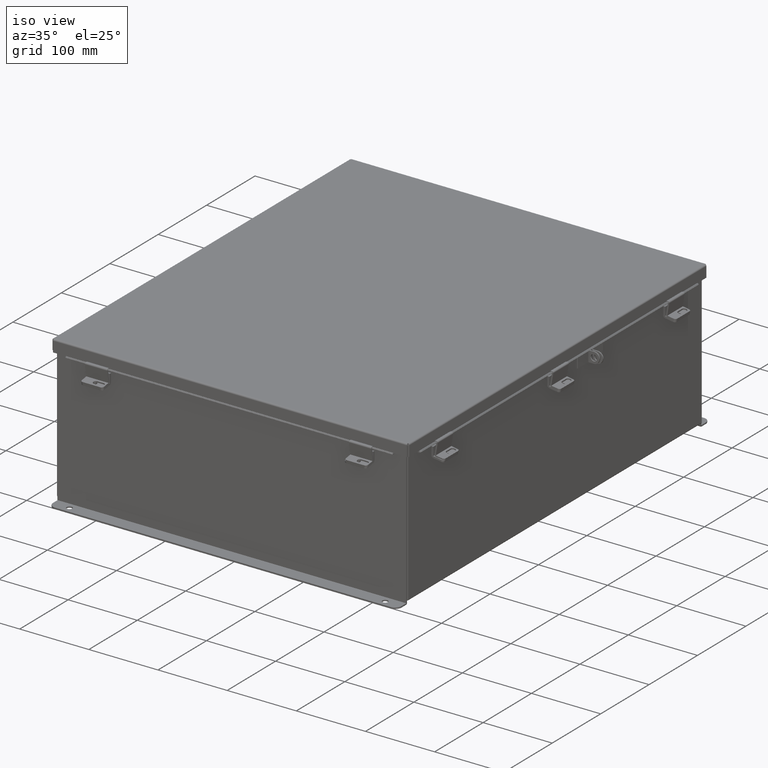
[diagram: clean part render]
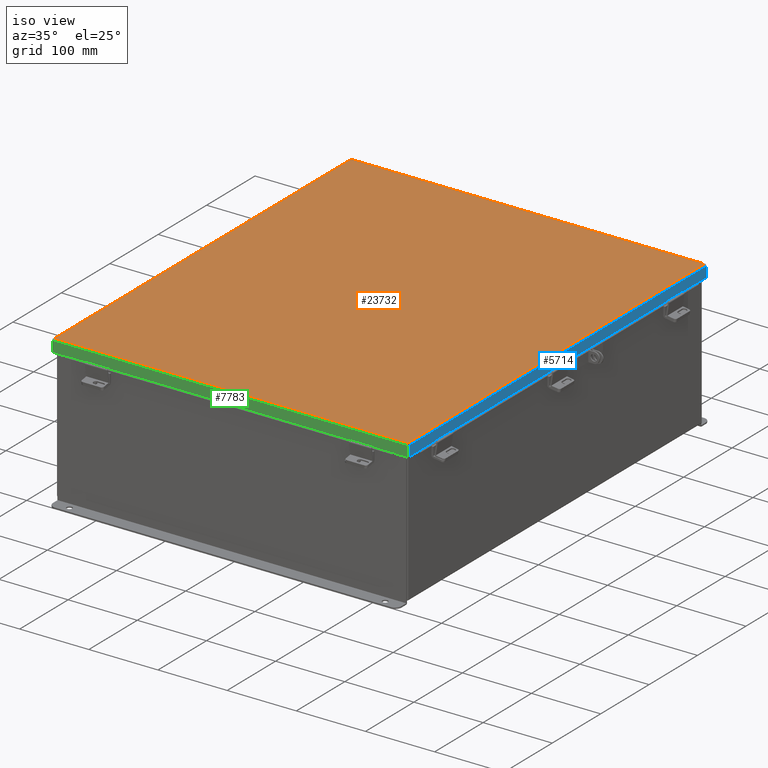
[diagram: same view with three faces highlighted in distinct colors, each labeled with its STEP entity id]
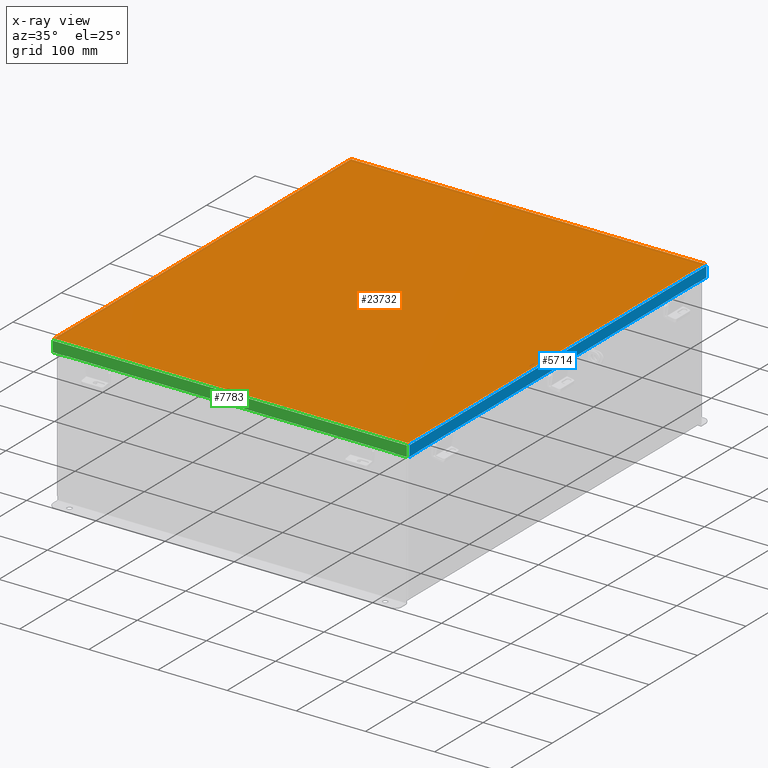
[diagram: x-ray of the same camera — body ghosted, the three highlighted faces saturated]
A machine part, iso view with three faces highlighted in distinct colors.
The next image is the same camera in x-ray (body ghosted, the three faces saturated) — at least one of them is partly hidden behind the body in this view.
Their STEP definitions:

[orange] entity #23732 — the highlighted planar face has unit normal (-0, -0, 1).
#529 = DIRECTION ( 'NONE',  ( 3.166671605124525800E-030, 1.000000000000000000, 1.853823127269377700E-029 ) ) ;
#2960 = EDGE_CURVE ( 'NONE', #10661, #18526, #14101, .T. ) ;
#4267 = EDGE_CURVE ( 'NONE', #9548, #10661, #14738, .T. ) ;
#4303 = DIRECTION ( 'NONE',  ( -1.000000000000000000, -3.208594708412919900E-030, -2.462603359672870600E-016 ) ) ;
#4527 = VECTOR ( 'NONE', #23488, 39.37007874015748100 ) ;
#4814 = LINE ( 'NONE', #23653, #4527 ) ;
#5584 = EDGE_LOOP ( 'NONE', ( #8224, #17267, #20916, #13606 ) ) ;
#8224 = ORIENTED_EDGE ( 'NONE', *, *, #21840, .T. ) ;
#9077 = CARTESIAN_POINT ( 'NONE',  ( 10.07447893218817100, -12.06854999999999700, -0.07469999999999797600 ) ) ;
#9548 = VERTEX_POINT ( 'NONE', #12730 ) ;
#9704 = CARTESIAN_POINT ( 'NONE',  ( -10.06855000000003200, 12.06855000000000000, -0.07470000000000015500 ) ) ;
#9977 = EDGE_CURVE ( 'NONE', #15449, #9548, #4814, .T. ) ;
#10541 = CARTESIAN_POINT ( 'NONE',  ( -10.06855000000003200, -12.07447893218813200, -0.07470000000000015500 ) ) ;
#10661 = VERTEX_POINT ( 'NONE', #21283 ) ;
#11274 = FACE_OUTER_BOUND ( 'NONE', #5584, .T. ) ;
#12730 = CARTESIAN_POINT ( 'NONE',  ( 10.06855000000003600, -12.06854999999999700, -0.07469999999999797600 ) ) ;
#13606 = ORIENTED_EDGE ( 'NONE', *, *, #2960, .T. ) ;
#13826 = VECTOR ( 'NONE', #529, 39.37007874015748100 ) ;
#14056 = AXIS2_PLACEMENT_3D ( 'NONE', #19374, #18316, #18132 ) ;
#14101 = LINE ( 'NONE', #10541, #13826 ) ;
#14694 = VECTOR ( 'NONE', #4303, 39.37007874015748100 ) ;
#14738 = LINE ( 'NONE', #9077, #14694 ) ;
#15449 = VERTEX_POINT ( 'NONE', #21656 ) ;
#17267 = ORIENTED_EDGE ( 'NONE', *, *, #9977, .T. ) ;
#18132 = DIRECTION ( 'NONE',  ( -1.000000000000000000, -3.215975411700707400E-030, 0.0000000000000000000 ) ) ;
#18316 = DIRECTION ( 'NONE',  ( 5.938065620492508100E-059, -1.846427556282924300E-029, -1.000000000000000000 ) ) ;
#18526 = VERTEX_POINT ( 'NONE', #9704 ) ;
#18725 = PLANE ( 'NONE',  #14056 ) ;
#18918 = LINE ( 'NONE', #24757, #18971 ) ;
#18971 = VECTOR ( 'NONE', #24724, 39.37007874015748100 ) ;
#19374 = CARTESIAN_POINT ( 'NONE',  ( -8.537024980200822600E-018, 0.0000000000000000000, -0.07470000000000015500 ) ) ;
#20916 = ORIENTED_EDGE ( 'NONE', *, *, #4267, .T. ) ;
#21283 = CARTESIAN_POINT ( 'NONE',  ( -10.06855000000003200, -12.06855000000000000, -0.07470000000000015500 ) ) ;
#21656 = CARTESIAN_POINT ( 'NONE',  ( 10.06855000000003600, 12.06854999999999700, -0.07470000000000015500 ) ) ;
#21840 = EDGE_CURVE ( 'NONE', #18526, #15449, #18918, .T. ) ;
#23488 = DIRECTION ( 'NONE',  ( -3.166671605124525800E-030, -1.000000000000000000, -1.853823127269377700E-029 ) ) ;
#23653 = CARTESIAN_POINT ( 'NONE',  ( 10.06855000000003600, 12.07447893218813200, -0.07470000000000015500 ) ) ;
#23732 = ADVANCED_FACE ( 'NONE', ( #11274 ), #18725, .T. ) ;
#24724 = DIRECTION ( 'NONE',  ( 1.000000000000000000, 3.215975411700707400E-030, -0.0000000000000000000 ) ) ;
#24757 = CARTESIAN_POINT ( 'NONE',  ( -10.07447893218816600, 12.06855000000000000, -0.07470000000000015500 ) ) ;

[blue] entity #5714 — the highlighted planar face has unit normal (-1, 0, -0).
#524 = LINE ( 'NONE', #16710, #584 ) ;
#584 = VECTOR ( 'NONE', #16850, 39.37007874015748100 ) ;
#931 = CARTESIAN_POINT ( 'NONE',  ( -10.15625000000003200, -11.32447893218813400, 0.6123000000000080600 ) ) ;
#939 = DIRECTION ( 'NONE',  ( -3.166671605124527300E-030, -1.000000000000000000, -1.853823127269378000E-029 ) ) ;
#1195 = CARTESIAN_POINT ( 'NONE',  ( -10.15625000000003200, 11.32447893218812900, 0.5967115427318782100 ) ) ;
#2461 = VECTOR ( 'NONE', #3575, 39.37007874015748100 ) ;
#2544 = LINE ( 'NONE', #3088, #2461 ) ;
#3088 = CARTESIAN_POINT ( 'NONE',  ( -10.15625000000003200, -11.32447893218812100, 0.5967115427318869800 ) ) ;
#3184 = ORIENTED_EDGE ( 'NONE', *, *, #12416, .F. ) ;
#3575 = DIRECTION ( 'NONE',  ( 0.0000000000000000000, -7.009925220120292200E-013, 1.000000000000000000 ) ) ;
#4547 = CARTESIAN_POINT ( 'NONE',  ( -10.15625000000003200, 11.32447893218813400, 0.6122999999999994000 ) ) ;
#5670 = VERTEX_POINT ( 'NONE', #931 ) ;
#5714 = ADVANCED_FACE ( 'NONE', ( #20445 ), #23921, .F. ) ;
#6282 = CARTESIAN_POINT ( 'NONE',  ( -10.15625000000003200, -12.07447893218813200, 0.01300000000000775700 ) ) ;
#6942 = VECTOR ( 'NONE', #10581, 39.37007874015748100 ) ;
#7263 = LINE ( 'NONE', #9811, #6942 ) ;
#7352 = VERTEX_POINT ( 'NONE', #8769 ) ;
#8194 = AXIS2_PLACEMENT_3D ( 'NONE', #9893, #21319, #10419 ) ;
#8376 = EDGE_CURVE ( 'NONE', #16938, #10824, #12841, .T. ) ;
#8769 = CARTESIAN_POINT ( 'NONE',  ( -10.15625000000003200, 12.07447893218813200, 0.01299999999999901400 ) ) ;
#9023 = DIRECTION ( 'NONE',  ( 1.401985044024124300E-013, -1.853823127269371600E-029, -1.000000000000000000 ) ) ;
#9088 = CARTESIAN_POINT ( 'NONE',  ( -10.15625000000003600, 11.32447893218813400, 0.6122999999999982900 ) ) ;
#9514 = EDGE_CURVE ( 'NONE', #20871, #7352, #7263, .T. ) ;
#9811 = CARTESIAN_POINT ( 'NONE',  ( -10.15625000000003200, 12.15625000000000000, 0.01299999999999901400 ) ) ;
#9893 = CARTESIAN_POINT ( 'NONE',  ( -10.15625000000003000, 0.0000000000000000000, -3.606039351636827200E-014 ) ) ;
#10317 = EDGE_CURVE ( 'NONE', #16075, #5670, #2544, .T. ) ;
#10419 = DIRECTION ( 'NONE',  ( 3.569293475308537100E-015, -1.846427556282924000E-029, -1.000000000000000000 ) ) ;
#10527 = VERTEX_POINT ( 'NONE', #12561 ) ;
#10581 = DIRECTION ( 'NONE',  ( 3.166671605124525800E-030, 1.000000000000000000, 1.853823127269377700E-029 ) ) ;
#10663 = DIRECTION ( 'NONE',  ( 3.166671605124525800E-030, 1.000000000000000000, 1.853823127269377700E-029 ) ) ;
#10823 = ORIENTED_EDGE ( 'NONE', *, *, #16716, .T. ) ;
#10824 = VERTEX_POINT ( 'NONE', #13715 ) ;
#12416 = EDGE_CURVE ( 'NONE', #16137, #16075, #12709, .T. ) ;
#12561 = CARTESIAN_POINT ( 'NONE',  ( -10.15625000000003200, -12.07447893218813200, 0.6123000000000080600 ) ) ;
#12627 = VECTOR ( 'NONE', #939, 39.37007874015748100 ) ;
#12635 = VECTOR ( 'NONE', #10663, 39.37007874015748100 ) ;
#12709 = LINE ( 'NONE', #1195, #12627 ) ;
#12841 = LINE ( 'NONE', #17351, #12635 ) ;
#12882 = CARTESIAN_POINT ( 'NONE',  ( -10.15625000000003200, 11.32447893218813400, 0.5967115427318782100 ) ) ;
#12965 = ORIENTED_EDGE ( 'NONE', *, *, #8376, .T. ) ;
#13242 = ORIENTED_EDGE ( 'NONE', *, *, #23006, .F. ) ;
#13715 = CARTESIAN_POINT ( 'NONE',  ( -10.15625000000003200, 12.07447893218813400, 0.6122999999999994000 ) ) ;
#13763 = CARTESIAN_POINT ( 'NONE',  ( -10.15625000000003400, -4.268512490100411300E-018, 0.6123000000000005100 ) ) ;
#14231 = VECTOR ( 'NONE', #14573, 39.37007874015748100 ) ;
#14239 = EDGE_LOOP ( 'NONE', ( #13242, #12965, #23045, #22591, #17240, #10823, #19790, #3184 ) ) ;
#14457 = VECTOR ( 'NONE', #9023, 39.37007874015748100 ) ;
#14526 = LINE ( 'NONE', #9088, #14457 ) ;
#14573 = DIRECTION ( 'NONE',  ( 3.166671605124525800E-030, 1.000000000000000000, 1.853823127269377700E-029 ) ) ;
#14725 = LINE ( 'NONE', #13763, #14231 ) ;
#16075 = VERTEX_POINT ( 'NONE', #16852 ) ;
#16137 = VERTEX_POINT ( 'NONE', #12882 ) ;
#16710 = CARTESIAN_POINT ( 'NONE',  ( -10.15625000000003200, -12.07447893218813200, -2.841121913410833900E-014 ) ) ;
#16716 = EDGE_CURVE ( 'NONE', #10527, #5670, #14725, .T. ) ;
#16850 = DIRECTION ( 'NONE',  ( -3.569293475308537100E-015, 1.846427556282924300E-029, 1.000000000000000000 ) ) ;
#16852 = CARTESIAN_POINT ( 'NONE',  ( -10.15625000000003200, -11.32447893218812100, 0.5967115427318869800 ) ) ;
#16938 = VERTEX_POINT ( 'NONE', #4547 ) ;
#17240 = ORIENTED_EDGE ( 'NONE', *, *, #20224, .T. ) ;
#17351 = CARTESIAN_POINT ( 'NONE',  ( -10.15625000000003400, -4.268512490100411300E-018, 0.6123000000000005100 ) ) ;
#18638 = CARTESIAN_POINT ( 'NONE',  ( -10.15625000000003200, 12.07447893218813400, -1.092739197465705300E-015 ) ) ;
#18881 = DIRECTION ( 'NONE',  ( -3.569293475308537100E-015, 1.846427556282924300E-029, 1.000000000000000000 ) ) ;
#19790 = ORIENTED_EDGE ( 'NONE', *, *, #10317, .F. ) ;
#20224 = EDGE_CURVE ( 'NONE', #20871, #10527, #524, .T. ) ;
#20445 = FACE_OUTER_BOUND ( 'NONE', #14239, .T. ) ;
#20871 = VERTEX_POINT ( 'NONE', #6282 ) ;
#20965 = VECTOR ( 'NONE', #18881, 39.37007874015748100 ) ;
#21118 = LINE ( 'NONE', #18638, #20965 ) ;
#21319 = DIRECTION ( 'NONE',  ( 1.000000000000000000, 3.392644796219358600E-030, 3.569293475308537100E-015 ) ) ;
#21376 = EDGE_CURVE ( 'NONE', #7352, #10824, #21118, .T. ) ;
#22591 = ORIENTED_EDGE ( 'NONE', *, *, #9514, .F. ) ;
#23006 = EDGE_CURVE ( 'NONE', #16938, #16137, #14526, .T. ) ;
#23045 = ORIENTED_EDGE ( 'NONE', *, *, #21376, .F. ) ;
#23921 = PLANE ( 'NONE',  #8194 ) ;

[green] entity #7783 — the highlighted planar face has unit normal (0, 1, -0).
#764 = DIRECTION ( 'NONE',  ( -1.075927825196970900E-016, 1.000000000000000000, 3.569293475308493700E-015 ) ) ;
#829 = CARTESIAN_POINT ( 'NONE',  ( -10.07447893218816600, -12.15625000000000000, 0.01300000000000010700 ) ) ;
#983 = VERTEX_POINT ( 'NONE', #829 ) ;
#1229 = DIRECTION ( 'NONE',  ( 0.0000000000000000000, 1.401985044024318400E-013, 1.000000000000000000 ) ) ;
#1889 = DIRECTION ( 'NONE',  ( 0.0000000000000000000, -3.569293475308493700E-015, 1.000000000000000000 ) ) ;
#1915 = CARTESIAN_POINT ( 'NONE',  ( 9.324478932188171100, -12.15625000000000200, 0.5967115427318815400 ) ) ;
#1994 = CARTESIAN_POINT ( 'NONE',  ( 10.07447893218817100, -12.15624999999999800, 0.01300000000000447800 ) ) ;
#2215 = VECTOR ( 'NONE', #1229, 39.37007874015748100 ) ;
#2270 = LINE ( 'NONE', #1915, #2215 ) ;
#2443 = VECTOR ( 'NONE', #3973, 39.37007874015748100 ) ;
#2479 = LINE ( 'NONE', #3736, #2443 ) ;
#3015 = VECTOR ( 'NONE', #10566, 39.37007874015748100 ) ;
#3020 = CARTESIAN_POINT ( 'NONE',  ( 9.324478932188171100, -12.15625000000000000, 0.5967115427318815400 ) ) ;
#3198 = LINE ( 'NONE', #11241, #3015 ) ;
#3375 = VERTEX_POINT ( 'NONE', #19853 ) ;
#3703 = EDGE_CURVE ( 'NONE', #24621, #983, #21749, .T. ) ;
#3736 = CARTESIAN_POINT ( 'NONE',  ( -9.324478932188164000, -12.15625000000000200, 0.5967115427318826500 ) ) ;
#3973 = DIRECTION ( 'NONE',  ( 1.000000000000000000, 3.215975411700707400E-030, -0.0000000000000000000 ) ) ;
#4934 = VERTEX_POINT ( 'NONE', #15685 ) ;
#5696 = EDGE_CURVE ( 'NONE', #24621, #4934, #21688, .T. ) ;
#7783 = ADVANCED_FACE ( 'NONE', ( #16163 ), #18003, .F. ) ;
#9204 = EDGE_LOOP ( 'NONE', ( #12573, #14011, #14303, #14630, #14656, #16118, #21332, #21978 ) ) ;
#10201 = EDGE_CURVE ( 'NONE', #4934, #24712, #3198, .T. ) ;
#10310 = EDGE_CURVE ( 'NONE', #3375, #14498, #2479, .T. ) ;
#10351 = EDGE_CURVE ( 'NONE', #14498, #24712, #2270, .T. ) ;
#10566 = DIRECTION ( 'NONE',  ( -1.000000000000000000, -1.075927825197030600E-016, 3.362274453740340600E-018 ) ) ;
#11241 = CARTESIAN_POINT ( 'NONE',  ( 1.301896309480625400E-015, -12.15625000000000000, 0.6123000000000080600 ) ) ;
#12016 = CARTESIAN_POINT ( 'NONE',  ( -10.15625000000003200, -12.15625000000000000, 0.01299999999999901400 ) ) ;
#12573 = ORIENTED_EDGE ( 'NONE', *, *, #22050, .F. ) ;
#12674 = DIRECTION ( 'NONE',  ( -1.000000000000000000, -1.075927825197026500E-016, -2.151855650394007300E-016 ) ) ;
#12810 = DIRECTION ( 'NONE',  ( -1.000000000000000000, -1.075927825197030600E-016, 3.362274453740340600E-018 ) ) ;
#12818 = CARTESIAN_POINT ( 'NONE',  ( -9.324478932188164000, -12.15625000000000000, 0.6123000000000005100 ) ) ;
#13287 = CARTESIAN_POINT ( 'NONE',  ( 1.301896309480625400E-015, -12.15625000000000000, 0.6123000000000080600 ) ) ;
#14011 = ORIENTED_EDGE ( 'NONE', *, *, #22729, .T. ) ;
#14303 = ORIENTED_EDGE ( 'NONE', *, *, #15468, .F. ) ;
#14498 = VERTEX_POINT ( 'NONE', #3020 ) ;
#14630 = ORIENTED_EDGE ( 'NONE', *, *, #3703, .F. ) ;
#14656 = ORIENTED_EDGE ( 'NONE', *, *, #5696, .T. ) ;
#15468 = EDGE_CURVE ( 'NONE', #983, #15471, #18998, .T. ) ;
#15471 = VERTEX_POINT ( 'NONE', #22477 ) ;
#15564 = VECTOR ( 'NONE', #12810, 39.37007874015748100 ) ;
#15591 = LINE ( 'NONE', #13287, #15564 ) ;
#15685 = CARTESIAN_POINT ( 'NONE',  ( 10.07447893218817100, -12.15625000000000000, 0.6122999999999994000 ) ) ;
#16118 = ORIENTED_EDGE ( 'NONE', *, *, #10201, .T. ) ;
#16163 = FACE_OUTER_BOUND ( 'NONE', #9204, .T. ) ;
#16909 = CARTESIAN_POINT ( 'NONE',  ( 9.324478932188171100, -12.15625000000000000, 0.6122999999999994000 ) ) ;
#18003 = PLANE ( 'NONE',  #18388 ) ;
#18045 = LINE ( 'NONE', #22017, #18108 ) ;
#18108 = VECTOR ( 'NONE', #21985, 39.37007874015748100 ) ;
#18134 = CARTESIAN_POINT ( 'NONE',  ( -10.07447893218816200, -12.15624999999999800, 0.0000000000000000000 ) ) ;
#18388 = AXIS2_PLACEMENT_3D ( 'NONE', #24746, #764, #1889 ) ;
#18503 = DIRECTION ( 'NONE',  ( -0.0000000000000000000, -3.569293475308494500E-015, 1.000000000000000000 ) ) ;
#18976 = VECTOR ( 'NONE', #18503, 39.37007874015748100 ) ;
#18998 = LINE ( 'NONE', #18134, #18976 ) ;
#19853 = CARTESIAN_POINT ( 'NONE',  ( -9.324478932188162300, -12.15625000000000000, 0.5967115427318826500 ) ) ;
#20757 = DIRECTION ( 'NONE',  ( 0.0000000000000000000, -3.569293475308494500E-015, 1.000000000000000000 ) ) ;
#21054 = VECTOR ( 'NONE', #20757, 39.37007874015748100 ) ;
#21332 = ORIENTED_EDGE ( 'NONE', *, *, #10351, .F. ) ;
#21688 = LINE ( 'NONE', #23430, #21054 ) ;
#21749 = LINE ( 'NONE', #12016, #21796 ) ;
#21796 = VECTOR ( 'NONE', #12674, 39.37007874015748100 ) ;
#21978 = ORIENTED_EDGE ( 'NONE', *, *, #10310, .F. ) ;
#21985 = DIRECTION ( 'NONE',  ( 7.009925220121877200E-014, -1.401985044024373700E-013, -1.000000000000000000 ) ) ;
#22017 = CARTESIAN_POINT ( 'NONE',  ( -9.324478932188164000, -12.15625000000000000, 0.6123000000000005100 ) ) ;
#22050 = EDGE_CURVE ( 'NONE', #24065, #3375, #18045, .T. ) ;
#22477 = CARTESIAN_POINT ( 'NONE',  ( -10.07447893218816200, -12.15625000000000000, 0.6123000000000005100 ) ) ;
#22729 = EDGE_CURVE ( 'NONE', #24065, #15471, #15591, .T. ) ;
#23430 = CARTESIAN_POINT ( 'NONE',  ( 10.07447893218817100, -12.15624999999999800, -4.370956789862821100E-014 ) ) ;
#24065 = VERTEX_POINT ( 'NONE', #12818 ) ;
#24621 = VERTEX_POINT ( 'NONE', #1994 ) ;
#24712 = VERTEX_POINT ( 'NONE', #16909 ) ;
#24746 = CARTESIAN_POINT ( 'NONE',  ( 1.307231950093251000E-015, -12.15624999999999800, -4.261682870116250900E-014 ) ) ;